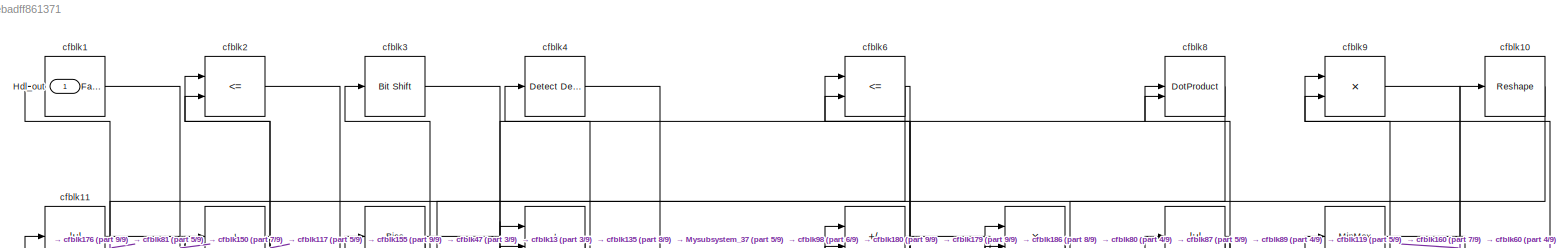
[diagram: root canvas - part 1/9, full width, top band]
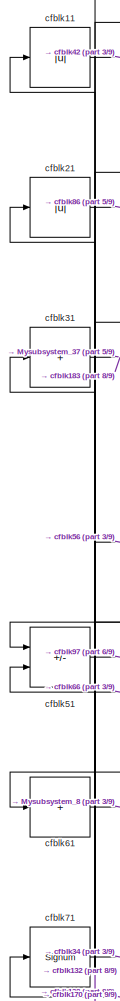
[diagram: root canvas - part 2/9, top left region]
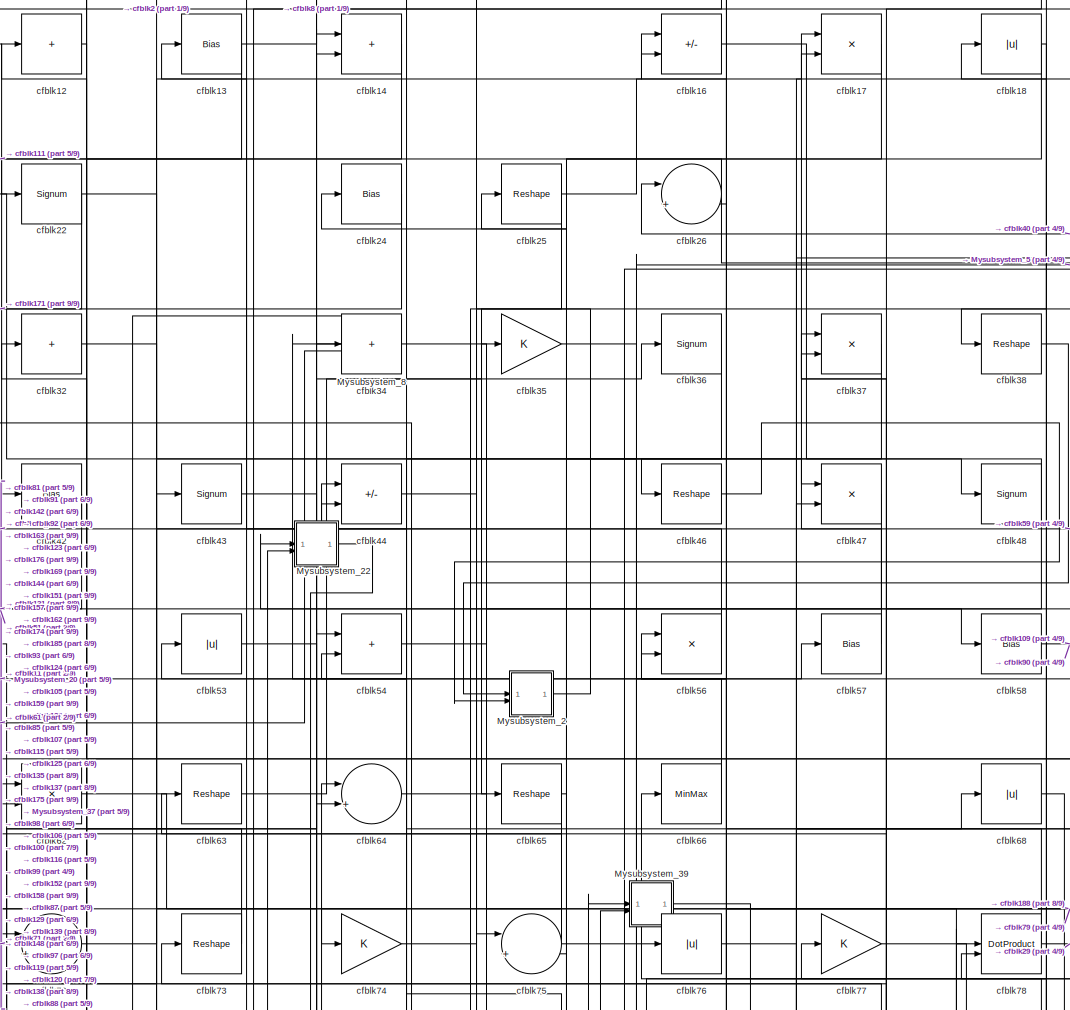
[diagram: root canvas - part 3/9, top center region]
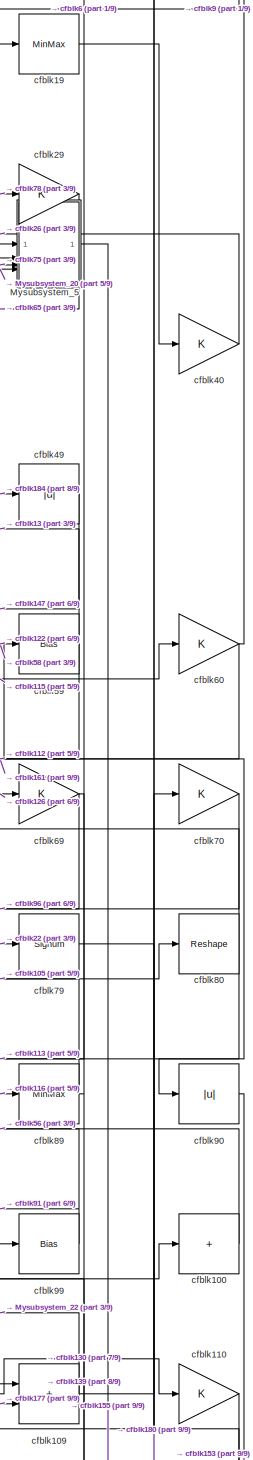
[diagram: root canvas - part 4/9, top right region]
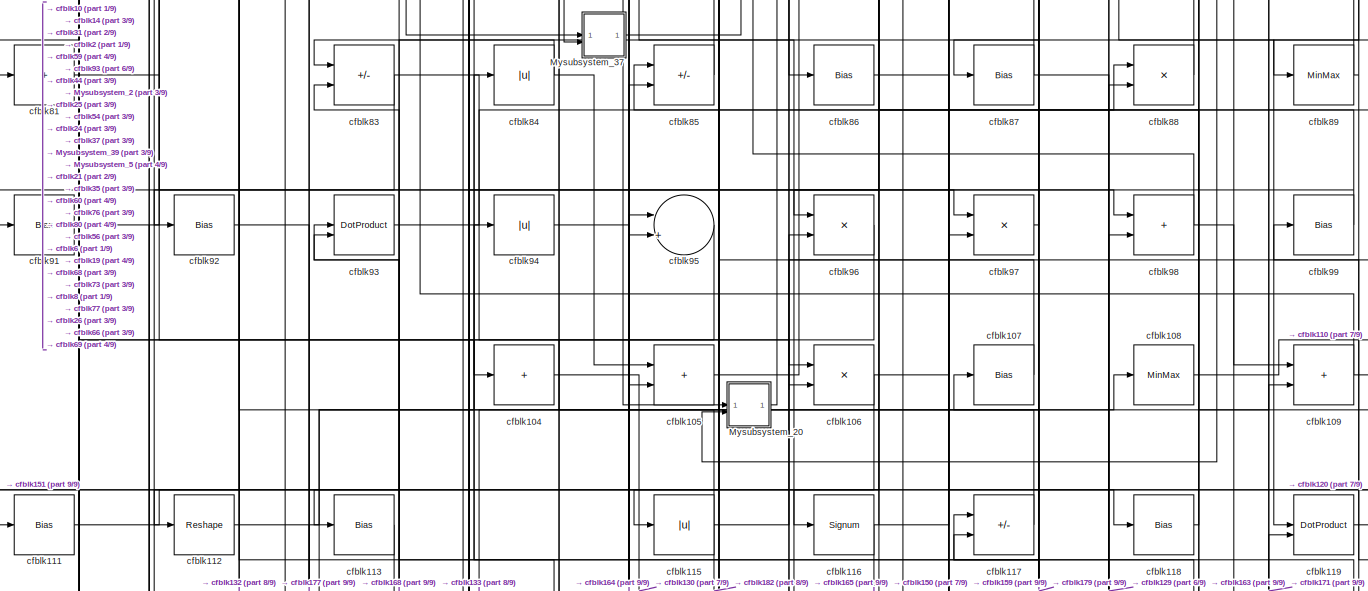
[diagram: root canvas - part 5/9, full width, middle band]
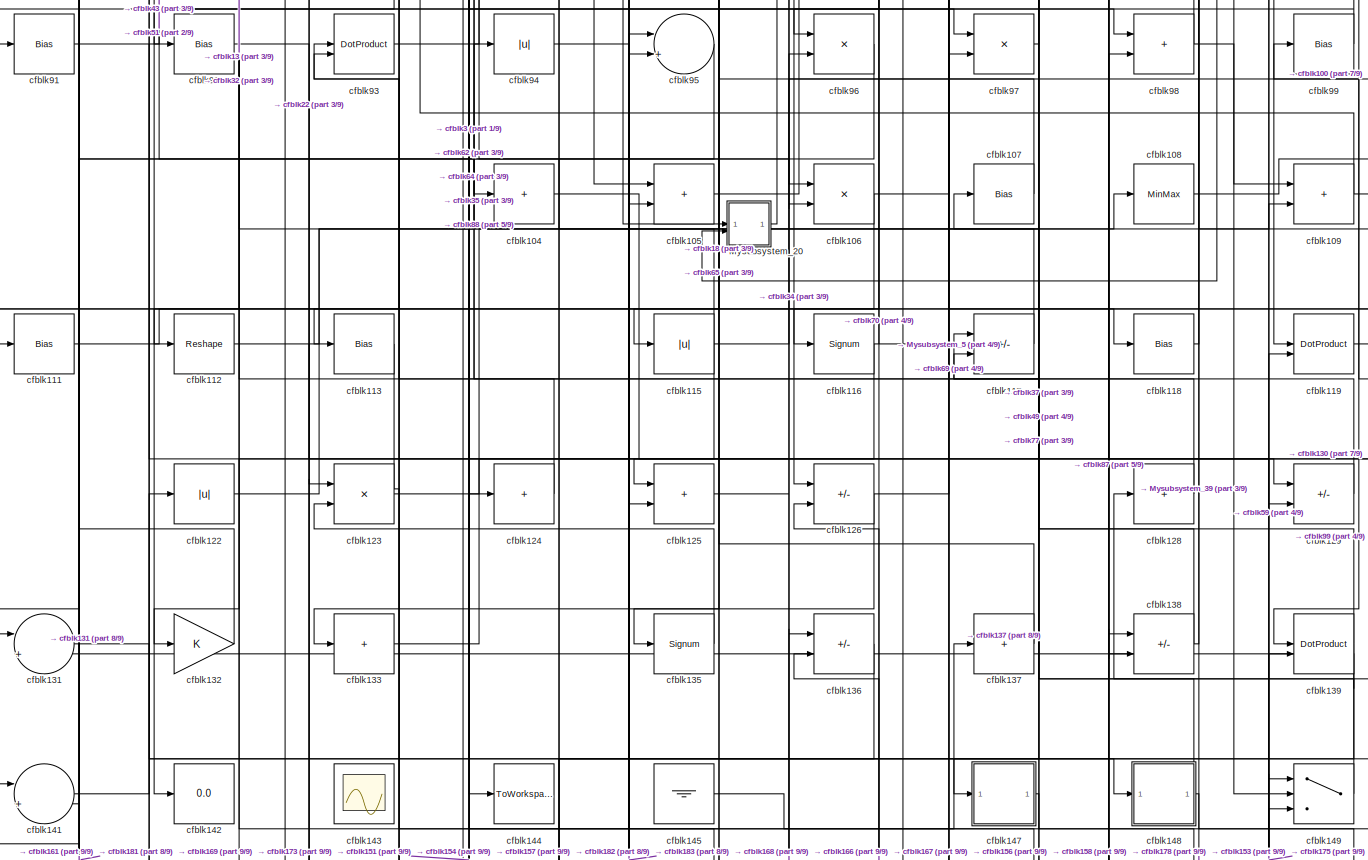
[diagram: root canvas - part 6/9, full width, middle band]
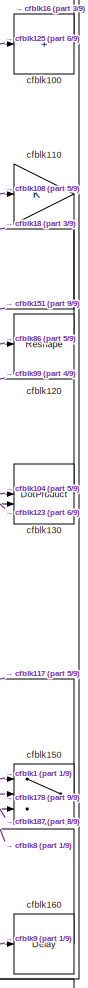
[diagram: root canvas - part 7/9, middle right region]
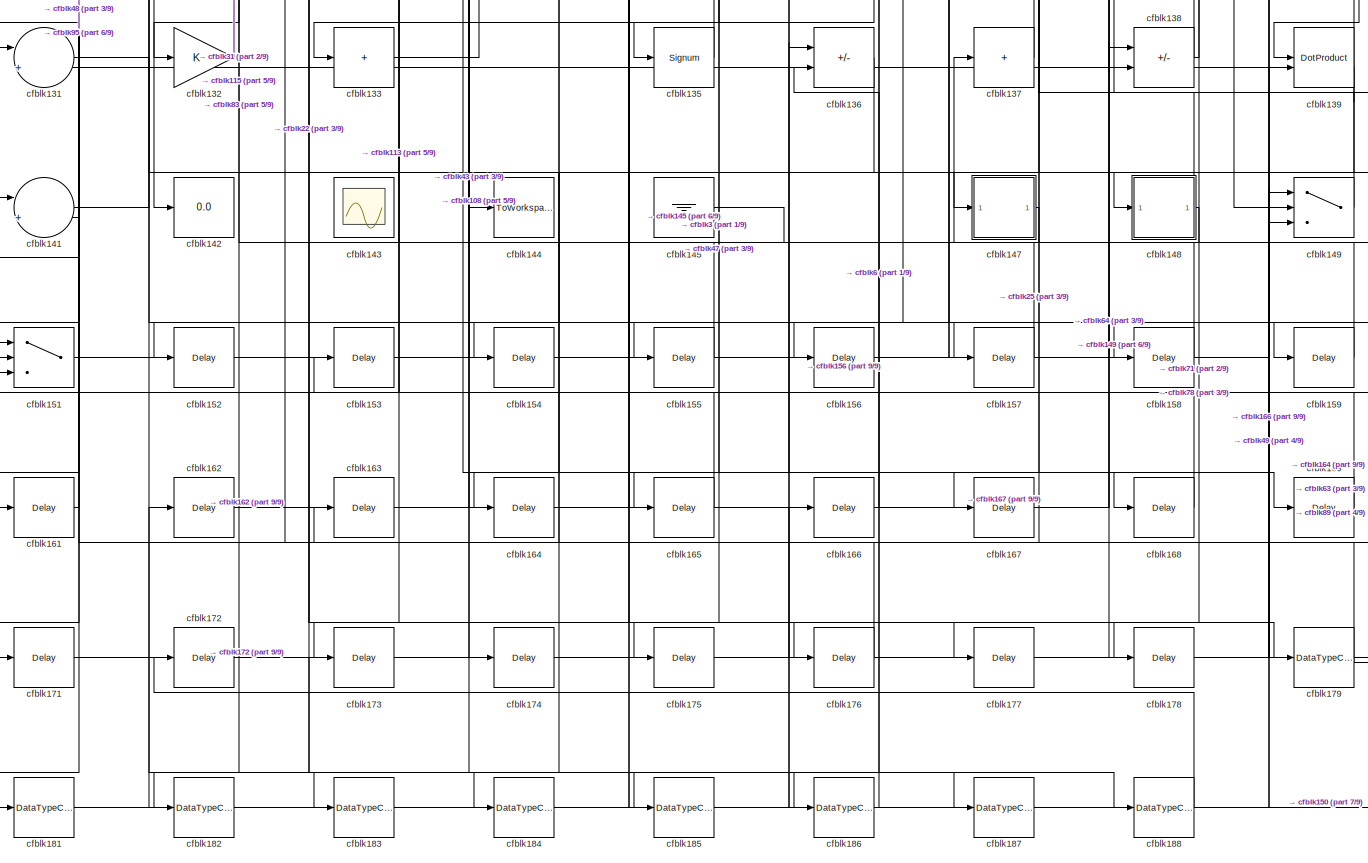
[diagram: root canvas - part 8/9, full width, bottom band]
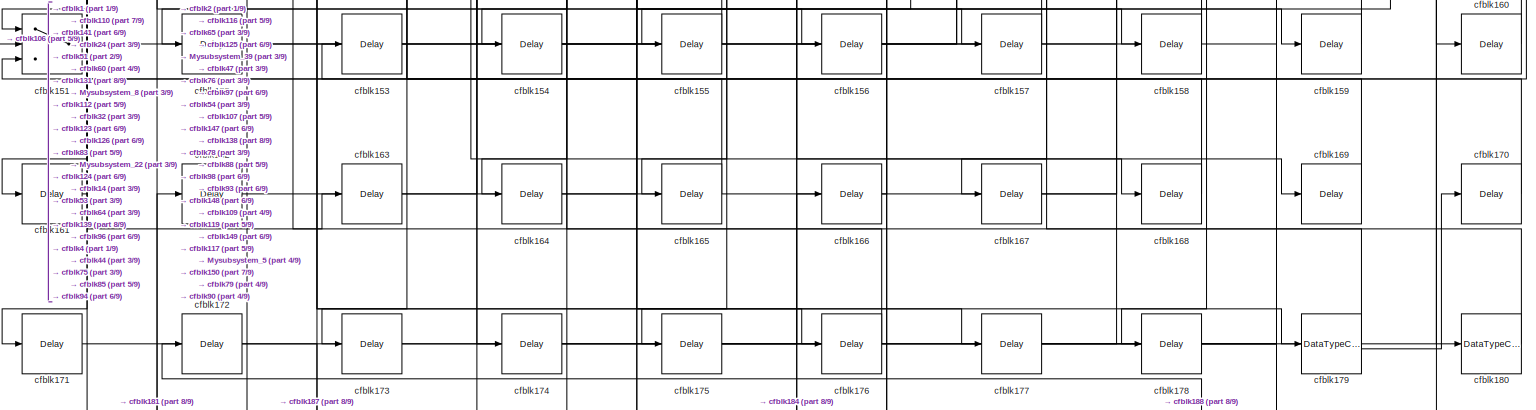
[diagram: root canvas - part 9/9, full width, bottom band]
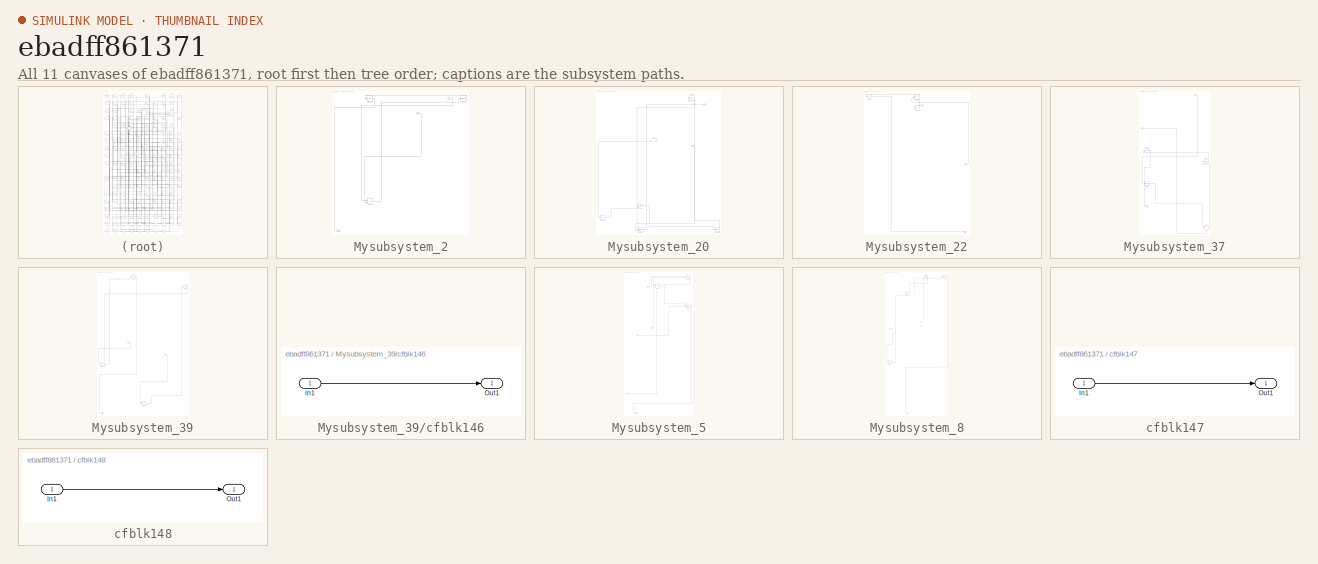
[diagram: thumbnail index - all 11 canvases of the model, root first then tree order]
MODEL slx_ebadff861371
KIND model
CONFIG AbsTol = auto
CONFIG EnableMultiTasking = off
CONFIG FixedStep = auto
CONFIG MaxStep = auto
CONFIG MinStep = auto
CONFIG RelTol = 1e-3
CONFIG SampleTimeConstraint = Unconstrained
CONFIG SolverName = VariableStepAuto
CONFIG StartTime = 0.0
CONFIG StopTime = 10.0
BLOCK [Outport] Hdl_out
  OutDataTypeStr = uint8
BLOCK [SubSystem] Mysubsystem_2
  RTWFcnName = Mysubsystem_2
  RTWFcnNameOpts = User specified
  RTWFileNameOpts = Use function name
  RTWSystemCode = Reusable function
  TreatAsAtomicUnit = on
BLOCK [Inport] Mysubsystem_2/In1
BLOCK [Inport] Mysubsystem_2/In2
  Port = 2
BLOCK [Outport] Mysubsystem_2/Out1
BLOCK [Product] Mysubsystem_2/cfblk103
  Inputs = */
  RndMeth = Zero
  SaturateOnIntegerOverflow = on
BLOCK [Abs] Mysubsystem_2/cfblk33
  SaturateOnIntegerOverflow = off
BLOCK [Signum] Mysubsystem_2/cfblk39
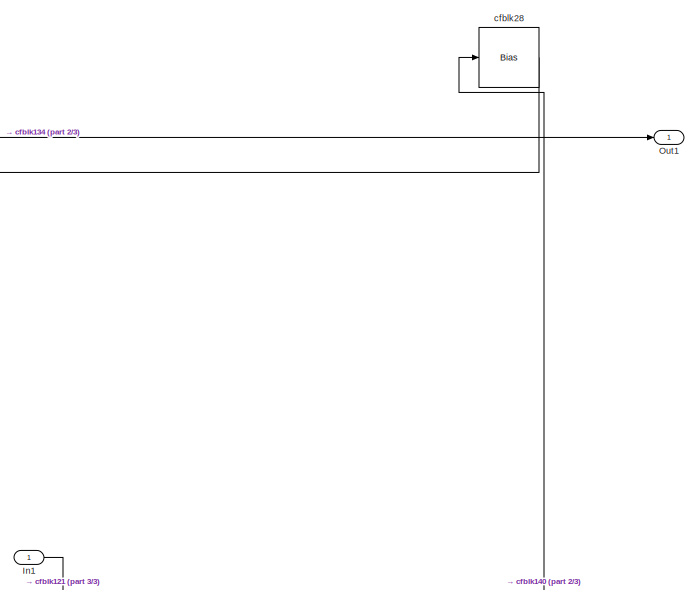
[diagram: Mysubsystem_20 - part 1/3, top center region]
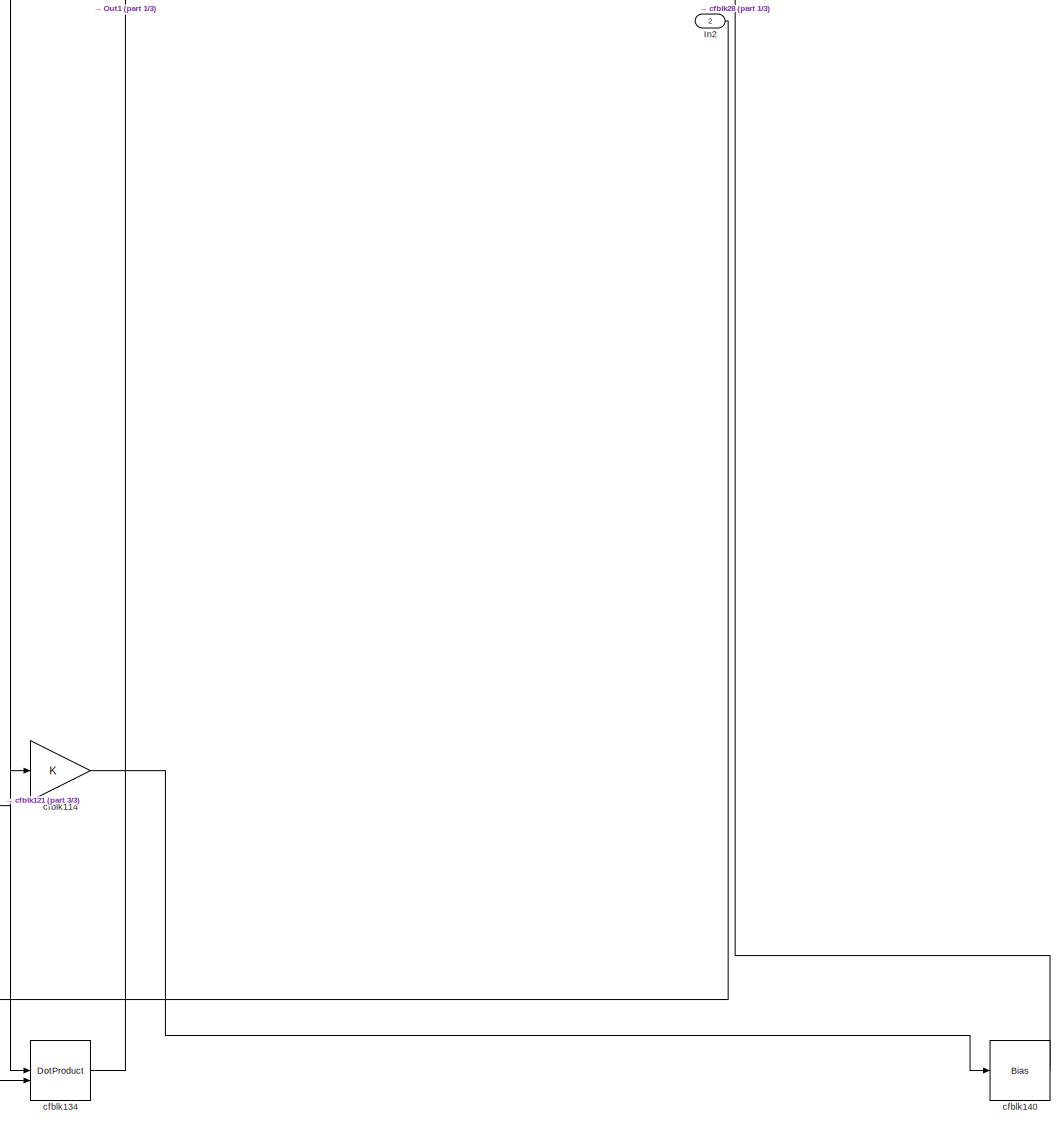
[diagram: Mysubsystem_20 - part 2/3, bottom center region]
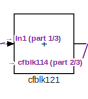
[diagram: Mysubsystem_20 - part 3/3, bottom left region]
BLOCK [SubSystem] Mysubsystem_20
  RTWFcnName = Mysubsystem_20
  RTWFcnNameOpts = User specified
  RTWFileNameOpts = Use function name
  RTWSystemCode = Reusable function
  TreatAsAtomicUnit = on
BLOCK [Inport] Mysubsystem_20/In1
BLOCK [Inport] Mysubsystem_20/In2
  Port = 2
BLOCK [Outport] Mysubsystem_20/Out1
BLOCK [Gain] Mysubsystem_20/cfblk114
BLOCK [Sum] Mysubsystem_20/cfblk121
  IconShape = rectangular
  Inputs = +
BLOCK [DotProduct] Mysubsystem_20/cfblk134
  OutDataTypeStr = Inherit: Inherit via internal rule
BLOCK [Bias] Mysubsystem_20/cfblk140
  Bias = 0.0
  SaturateOnIntegerOverflow = off
BLOCK [Bias] Mysubsystem_20/cfblk28
  Bias = 0.0
  SaturateOnIntegerOverflow = off
BLOCK [SubSystem] Mysubsystem_22
  RTWFcnName = Mysubsystem_22
  RTWFcnNameOpts = User specified
  RTWFileNameOpts = Use function name
  RTWSystemCode = Reusable function
  TreatAsAtomicUnit = on
BLOCK [Inport] Mysubsystem_22/In1
BLOCK [Inport] Mysubsystem_22/In2
  Port = 2
BLOCK [Outport] Mysubsystem_22/Out1
BLOCK [Abs] Mysubsystem_22/cfblk41
  SaturateOnIntegerOverflow = off
BLOCK [Product] Mysubsystem_22/cfblk45
  Inputs = */
  RndMeth = Zero
  SaturateOnIntegerOverflow = on
BLOCK [Bias] Mysubsystem_22/cfblk55
  Bias = 0.0
  SaturateOnIntegerOverflow = off
BLOCK [SubSystem] Mysubsystem_37
  RTWFcnName = Mysubsystem_37
  RTWFcnNameOpts = User specified
  RTWFileNameOpts = Use function name
  RTWSystemCode = Reusable function
  TreatAsAtomicUnit = on
BLOCK [Inport] Mysubsystem_37/In1
BLOCK [Inport] Mysubsystem_37/In2
  Port = 2
BLOCK [Outport] Mysubsystem_37/Out1
BLOCK [Sum] Mysubsystem_37/cfblk127
  Inputs = |++
BLOCK [Signum] Mysubsystem_37/cfblk52
BLOCK [Bias] Mysubsystem_37/cfblk67
  Bias = 0.0
  SaturateOnIntegerOverflow = off
BLOCK [Reshape] Mysubsystem_37/cfblk82
BLOCK [SubSystem] Mysubsystem_39
  RTWFcnName = Mysubsystem_39
  RTWFcnNameOpts = User specified
  RTWFileNameOpts = Use function name
  RTWSystemCode = Reusable function
  TreatAsAtomicUnit = on
BLOCK [Inport] Mysubsystem_39/In1
BLOCK [Inport] Mysubsystem_39/In2
  Port = 2
BLOCK [Outport] Mysubsystem_39/Out1
BLOCK [Sum] Mysubsystem_39/cfblk102
  Inputs = |++
BLOCK [SubSystem] Mysubsystem_39/cfblk146
  LibrarySourceBlock = hdlsllib/Ports &\nSubsystems/Subsystem
BLOCK [Inport] Mysubsystem_39/cfblk146/In1
BLOCK [Outport] Mysubsystem_39/cfblk146/Out1
BLOCK [Bias] Mysubsystem_39/cfblk15
  Bias = 0.0
  SaturateOnIntegerOverflow = off
BLOCK [Reshape] Mysubsystem_39/cfblk30
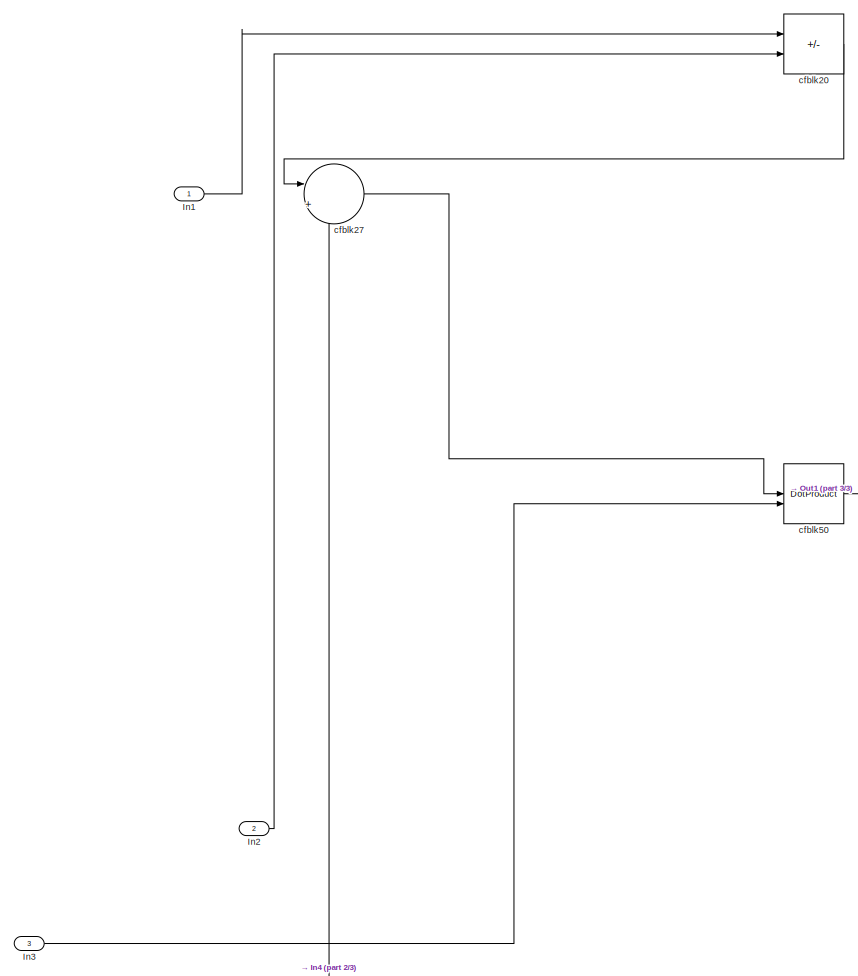
[diagram: Mysubsystem_5 - part 1/3, full width, top band]
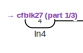
[diagram: Mysubsystem_5 - part 2/3, bottom left region]
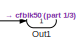
[diagram: Mysubsystem_5 - part 3/3, bottom left region]
BLOCK [SubSystem] Mysubsystem_5
  RTWFcnName = Mysubsystem_5
  RTWFcnNameOpts = User specified
  RTWFileNameOpts = Use function name
  RTWSystemCode = Reusable function
  TreatAsAtomicUnit = on
BLOCK [Inport] Mysubsystem_5/In1
BLOCK [Inport] Mysubsystem_5/In2
  Port = 2
BLOCK [Inport] Mysubsystem_5/In3
  Port = 3
BLOCK [Inport] Mysubsystem_5/In4
  Port = 4
BLOCK [Outport] Mysubsystem_5/Out1
BLOCK [Sum] Mysubsystem_5/cfblk20
  IconShape = rectangular
  Inputs = +-
BLOCK [Sum] Mysubsystem_5/cfblk27
  Inputs = |++
BLOCK [DotProduct] Mysubsystem_5/cfblk50
  OutDataTypeStr = Inherit: Inherit via internal rule
BLOCK [SubSystem] Mysubsystem_8
  RTWFcnName = Mysubsystem_8
  RTWFcnNameOpts = User specified
  RTWFileNameOpts = Use function name
  RTWSystemCode = Reusable function
  TreatAsAtomicUnit = on
BLOCK [Inport] Mysubsystem_8/In1
BLOCK [Inport] Mysubsystem_8/In2
  Port = 2
BLOCK [Sum] Mysubsystem_8/cfblk101
  IconShape = rectangular
  Inputs = +
BLOCK [Product] Mysubsystem_8/cfblk23
  Inputs = */
  RndMeth = Zero
  SaturateOnIntegerOverflow = on
BLOCK [ArithShift] Mysubsystem_8/cfblk5
  BitShiftNumber = 8
  InputPortMap = u0
BLOCK [Reference] Mysubsystem_8/cfblk7  REF=simulink/Logic and Bit
Operations/Extract Bits
  LibrarySourceBlock = hdlsllib/Logic and Bit\nOperations/Extract Bits
  SourceBlock = simulink/Logic and Bit\nOperations/Extract Bits
  SourceType = Extract Bits
BLOCK [Outport] Mysubsystem_8/y
BLOCK [Reference] cfblk1  REF=hdlsllib/Logic and Bit
Operations/Detect Fall
Nonpositive
  SourceBlock = hdlsllib/Logic and Bit\nOperations/Detect Fall\nNonpositive
  SourceType = Detect Fall Nonpositive
BLOCK [Reshape] cfblk10
BLOCK [Sum] cfblk100
  IconShape = rectangular
  Inputs = +
  OutDataTypeStr = uint8
BLOCK [Sum] cfblk104
  IconShape = rectangular
  Inputs = +
  OutDataTypeStr = uint8
BLOCK [Sum] cfblk105
  IconShape = rectangular
  OutDataTypeStr = uint8
BLOCK [Product] cfblk106
  Inputs = */
  OutDataTypeStr = uint8
  RndMeth = Zero
  SaturateOnIntegerOverflow = on
BLOCK [Bias] cfblk107
  Bias = 0.0
  SaturateOnIntegerOverflow = off
BLOCK [MinMax] cfblk108
  OutDataTypeStr = uint8
BLOCK [Sum] cfblk109
  IconShape = rectangular
  OutDataTypeStr = uint8
BLOCK [Abs] cfblk11
  OutDataTypeStr = uint8
  SaturateOnIntegerOverflow = off
BLOCK [Gain] cfblk110
  OutDataTypeStr = uint8
BLOCK [Bias] cfblk111
  Bias = 0.0
  SaturateOnIntegerOverflow = off
BLOCK [Reshape] cfblk112
BLOCK [Bias] cfblk113
  Bias = 0.0
  SaturateOnIntegerOverflow = off
BLOCK [Abs] cfblk115
  OutDataTypeStr = uint8
  SaturateOnIntegerOverflow = off
BLOCK [Signum] cfblk116
BLOCK [Sum] cfblk117
  IconShape = rectangular
  Inputs = +-
  OutDataTypeStr = uint8
BLOCK [Bias] cfblk118
  Bias = 0.0
  SaturateOnIntegerOverflow = off
BLOCK [DotProduct] cfblk119
  OutDataTypeStr = uint8
BLOCK [Sum] cfblk12
  IconShape = rectangular
  Inputs = +
  OutDataTypeStr = uint8
BLOCK [Reshape] cfblk120
BLOCK [Abs] cfblk122
  OutDataTypeStr = uint8
  SaturateOnIntegerOverflow = off
BLOCK [Product] cfblk123
  Inputs = */
  OutDataTypeStr = uint8
  RndMeth = Zero
  SaturateOnIntegerOverflow = on
BLOCK [Sum] cfblk124
  IconShape = rectangular
  Inputs = +
  OutDataTypeStr = uint8
BLOCK [Sum] cfblk125
  IconShape = rectangular
  OutDataTypeStr = uint8
BLOCK [Sum] cfblk126
  IconShape = rectangular
  Inputs = +-
  OutDataTypeStr = uint8
BLOCK [Sum] cfblk128
  IconShape = rectangular
  Inputs = +
  OutDataTypeStr = uint8
BLOCK [Sum] cfblk129
  IconShape = rectangular
  Inputs = +-
  OutDataTypeStr = uint8
BLOCK [Bias] cfblk13
  Bias = 0.0
  SaturateOnIntegerOverflow = off
BLOCK [DotProduct] cfblk130
  OutDataTypeStr = uint8
BLOCK [Sum] cfblk131
  Inputs = |++
  OutDataTypeStr = uint8
BLOCK [Gain] cfblk132
  OutDataTypeStr = uint8
BLOCK [Sum] cfblk133
  IconShape = rectangular
  Inputs = +
  OutDataTypeStr = uint8
BLOCK [Signum] cfblk135
BLOCK [Sum] cfblk136
  IconShape = rectangular
  Inputs = +-
  OutDataTypeStr = uint8
BLOCK [Sum] cfblk137
  IconShape = rectangular
  Inputs = +
  OutDataTypeStr = uint8
BLOCK [Sum] cfblk138
  IconShape = rectangular
  Inputs = +-
  OutDataTypeStr = uint8
BLOCK [DotProduct] cfblk139
  OutDataTypeStr = uint8
BLOCK [Sum] cfblk14
  IconShape = rectangular
  OutDataTypeStr = uint8
BLOCK [Sum] cfblk141
  Inputs = |++
  OutDataTypeStr = uint8
BLOCK [Display] cfblk142
  Decimation = 1
BLOCK [Scope] cfblk143
  Floating = on
  NumInputPorts = 1
  ScopeSpecificationString = Simulink.scopes.TimeScopeBlockCfg('CurrentConfiguration', extmgr.ConfigurationSet(extmgr.Configuration('Core','General UI',true,'FigureColor',[0.156862745098039 0.156862745098039 0.156862745098039]),extmgr.Configuration('Core','Source UI',true),extmgr.Configuration('Sources','WiredSimulink',true,'DataLoggingVariableName','ScopeData1','DataLoggingSaveFormat','StructureWithTime','DataLoggingLimitDat...<+2713ch>
BLOCK [ToWorkspace] cfblk144
  MaxDataPoints = inf
  SampleTime = -1
  SaveFormat = Timeseries
  VariableName = simout
BLOCK [Ground] cfblk145
BLOCK [SubSystem] cfblk147
  LibrarySourceBlock = hdlsllib/Ports &\nSubsystems/Subsystem
BLOCK [Inport] cfblk147/In1
BLOCK [Outport] cfblk147/Out1
BLOCK [SubSystem] cfblk148
  LibrarySourceBlock = hdlsllib/Ports &\nSubsystems/Subsystem
BLOCK [Inport] cfblk148/In1
BLOCK [Outport] cfblk148/Out1
BLOCK [Switch] cfblk149
  InputSameDT = off
  OutDataTypeStr = uint8
  SaturateOnIntegerOverflow = off
BLOCK [Switch] cfblk150
  InputSameDT = off
  OutDataTypeStr = uint8
  SaturateOnIntegerOverflow = off
BLOCK [Switch] cfblk151
  InputSameDT = off
  OutDataTypeStr = uint8
  SaturateOnIntegerOverflow = off
BLOCK [Delay] cfblk152
  InputPortMap = u0
  SampleTime = 1
BLOCK [Delay] cfblk153
  InputPortMap = u0
  SampleTime = 1
BLOCK [Delay] cfblk154
  InputPortMap = u0
  SampleTime = 1
BLOCK [Delay] cfblk155
  InputPortMap = u0
  SampleTime = 1
BLOCK [Delay] cfblk156
  InputPortMap = u0
  SampleTime = 1
BLOCK [Delay] cfblk157
  InputPortMap = u0
  SampleTime = 1
BLOCK [Delay] cfblk158
  InputPortMap = u0
  SampleTime = 1
BLOCK [Delay] cfblk159
  InputPortMap = u0
  SampleTime = 1
BLOCK [Sum] cfblk16
  IconShape = rectangular
  Inputs = +-
  OutDataTypeStr = uint8
BLOCK [Delay] cfblk160
  InputPortMap = u0
  SampleTime = 1
BLOCK [Delay] cfblk161
  InputPortMap = u0
  SampleTime = 1
BLOCK [Delay] cfblk162
  InputPortMap = u0
  SampleTime = 1
BLOCK [Delay] cfblk163
  InputPortMap = u0
  SampleTime = 1
BLOCK [Delay] cfblk164
  InputPortMap = u0
  SampleTime = 1
BLOCK [Delay] cfblk165
  InputPortMap = u0
  SampleTime = 1
BLOCK [Delay] cfblk166
  InputPortMap = u0
  SampleTime = 1
BLOCK [Delay] cfblk167
  InputPortMap = u0
  SampleTime = 1
BLOCK [Delay] cfblk168
  InputPortMap = u0
  SampleTime = 1
BLOCK [Delay] cfblk169
  InputPortMap = u0
  SampleTime = 1
BLOCK [Product] cfblk17
  Inputs = */
  OutDataTypeStr = uint8
  RndMeth = Zero
  SaturateOnIntegerOverflow = on
BLOCK [Delay] cfblk170
  InputPortMap = u0
  SampleTime = 1
BLOCK [Delay] cfblk171
  InputPortMap = u0
  SampleTime = 1
BLOCK [Delay] cfblk172
  InputPortMap = u0
  SampleTime = 1
BLOCK [Delay] cfblk173
  InputPortMap = u0
  SampleTime = 1
BLOCK [Delay] cfblk174
  InputPortMap = u0
  SampleTime = 1
BLOCK [Delay] cfblk175
  InputPortMap = u0
  SampleTime = 1
BLOCK [Delay] cfblk176
  InputPortMap = u0
  SampleTime = 1
BLOCK [Delay] cfblk177
  InputPortMap = u0
  SampleTime = 1
BLOCK [Delay] cfblk178
  InputPortMap = u0
  SampleTime = 1
BLOCK [DataTypeConversion] cfblk179
  OutDataTypeStr = uint8
  RndMeth = Floor
  SaturateOnIntegerOverflow = off
BLOCK [Abs] cfblk18
  OutDataTypeStr = uint8
  SaturateOnIntegerOverflow = off
BLOCK [DataTypeConversion] cfblk180
  OutDataTypeStr = uint8
  RndMeth = Floor
  SaturateOnIntegerOverflow = off
BLOCK [DataTypeConversion] cfblk181
  OutDataTypeStr = uint8
  RndMeth = Floor
  SaturateOnIntegerOverflow = off
BLOCK [DataTypeConversion] cfblk182
  OutDataTypeStr = uint8
  RndMeth = Floor
  SaturateOnIntegerOverflow = off
BLOCK [DataTypeConversion] cfblk183
  OutDataTypeStr = uint8
  RndMeth = Floor
  SaturateOnIntegerOverflow = off
BLOCK [DataTypeConversion] cfblk184
  OutDataTypeStr = uint8
  RndMeth = Floor
  SaturateOnIntegerOverflow = off
BLOCK [DataTypeConversion] cfblk185
  OutDataTypeStr = uint8
  RndMeth = Floor
  SaturateOnIntegerOverflow = off
BLOCK [DataTypeConversion] cfblk186
  OutDataTypeStr = uint8
  RndMeth = Floor
  SaturateOnIntegerOverflow = off
BLOCK [DataTypeConversion] cfblk187
  OutDataTypeStr = uint8
  RndMeth = Floor
  SaturateOnIntegerOverflow = off
BLOCK [DataTypeConversion] cfblk188
  OutDataTypeStr = uint8
  RndMeth = Floor
  SaturateOnIntegerOverflow = off
BLOCK [MinMax] cfblk19
  OutDataTypeStr = uint8
BLOCK [RelationalOperator] cfblk2
  InputSameDT = off
  Operator = <=
  OutDataTypeStr = boolean
BLOCK [Abs] cfblk21
  OutDataTypeStr = uint8
  SaturateOnIntegerOverflow = off
BLOCK [Signum] cfblk22
BLOCK [Bias] cfblk24
  Bias = 0.0
  SaturateOnIntegerOverflow = off
BLOCK [Reshape] cfblk25
BLOCK [Sum] cfblk26
  Inputs = |++
  OutDataTypeStr = uint8
BLOCK [Gain] cfblk29
  OutDataTypeStr = uint8
BLOCK [Reference] cfblk3  REF=hdlsllib/Logic and Bit
Operations/Bit Shift
  SourceBlock = hdlsllib/Logic and Bit\nOperations/Bit Shift
  SourceType = Bit Shift
BLOCK [Sum] cfblk31
  IconShape = rectangular
  Inputs = +
  OutDataTypeStr = uint8
BLOCK [Sum] cfblk32
  IconShape = rectangular
  Inputs = +
  OutDataTypeStr = uint8
BLOCK [Sum] cfblk34
  IconShape = rectangular
  Inputs = +
  OutDataTypeStr = uint8
BLOCK [Gain] cfblk35
  OutDataTypeStr = uint8
BLOCK [Signum] cfblk36
BLOCK [Product] cfblk37
  Inputs = */
  OutDataTypeStr = uint8
  RndMeth = Zero
  SaturateOnIntegerOverflow = on
BLOCK [Reshape] cfblk38
BLOCK [Reference] cfblk4  REF=simulink/Logic and Bit
Operations/Detect
Decrease
  LibrarySourceBlock = hdlsllib/Logic and Bit\nOperations/Detect\nDecrease
  SourceBlock = simulink/Logic and Bit\nOperations/Detect\nDecrease
  SourceType = Detect Decrease
BLOCK [Gain] cfblk40
  OutDataTypeStr = uint8
BLOCK [Bias] cfblk42
  Bias = 0.0
  SaturateOnIntegerOverflow = off
BLOCK [Signum] cfblk43
BLOCK [Sum] cfblk44
  IconShape = rectangular
  Inputs = +-
  OutDataTypeStr = uint8
BLOCK [Reshape] cfblk46
BLOCK [Product] cfblk47
  Inputs = */
  OutDataTypeStr = uint8
  RndMeth = Zero
  SaturateOnIntegerOverflow = on
BLOCK [Signum] cfblk48
BLOCK [Abs] cfblk49
  OutDataTypeStr = uint8
  SaturateOnIntegerOverflow = off
BLOCK [Sum] cfblk51
  IconShape = rectangular
  Inputs = +-
  OutDataTypeStr = uint8
BLOCK [Abs] cfblk53
  OutDataTypeStr = uint8
  SaturateOnIntegerOverflow = off
BLOCK [Sum] cfblk54
  IconShape = rectangular
  OutDataTypeStr = uint8
BLOCK [Product] cfblk56
  Inputs = */
  OutDataTypeStr = uint8
  RndMeth = Zero
  SaturateOnIntegerOverflow = on
BLOCK [Bias] cfblk57
  Bias = 0.0
  SaturateOnIntegerOverflow = off
BLOCK [Bias] cfblk58
  Bias = 0.0
  SaturateOnIntegerOverflow = off
BLOCK [Bias] cfblk59
  Bias = 0.0
  SaturateOnIntegerOverflow = off
BLOCK [RelationalOperator] cfblk6
  InputSameDT = off
  Operator = <=
  OutDataTypeStr = boolean
BLOCK [Gain] cfblk60
  OutDataTypeStr = uint8
BLOCK [Sum] cfblk61
  IconShape = rectangular
  Inputs = +
  OutDataTypeStr = uint8
BLOCK [Product] cfblk62
  Inputs = */
  OutDataTypeStr = uint8
  RndMeth = Zero
  SaturateOnIntegerOverflow = on
BLOCK [Reshape] cfblk63
BLOCK [Sum] cfblk64
  Inputs = |++
  OutDataTypeStr = uint8
BLOCK [Reshape] cfblk65
BLOCK [MinMax] cfblk66
  OutDataTypeStr = uint8
BLOCK [Abs] cfblk68
  OutDataTypeStr = uint8
  SaturateOnIntegerOverflow = off
BLOCK [Gain] cfblk69
  OutDataTypeStr = uint8
BLOCK [Gain] cfblk70
  OutDataTypeStr = uint8
BLOCK [Signum] cfblk71
BLOCK [Sum] cfblk72
  Inputs = |++
  OutDataTypeStr = uint8
BLOCK [Reshape] cfblk73
BLOCK [Gain] cfblk74
  OutDataTypeStr = uint8
BLOCK [Sum] cfblk75
  Inputs = |++
  OutDataTypeStr = uint8
BLOCK [Abs] cfblk76
  OutDataTypeStr = uint8
  SaturateOnIntegerOverflow = off
BLOCK [Gain] cfblk77
  OutDataTypeStr = uint8
BLOCK [DotProduct] cfblk78
  OutDataTypeStr = uint8
BLOCK [Signum] cfblk79
BLOCK [DotProduct] cfblk8
  OutDataTypeStr = uint8
BLOCK [Reshape] cfblk80
BLOCK [Sum] cfblk81
  IconShape = rectangular
  Inputs = +
  OutDataTypeStr = uint8
BLOCK [Sum] cfblk83
  IconShape = rectangular
  Inputs = +-
  OutDataTypeStr = uint8
BLOCK [Abs] cfblk84
  OutDataTypeStr = uint8
  SaturateOnIntegerOverflow = off
BLOCK [Sum] cfblk85
  IconShape = rectangular
  Inputs = +-
  OutDataTypeStr = uint8
BLOCK [Bias] cfblk86
  Bias = 0.0
  SaturateOnIntegerOverflow = off
BLOCK [Bias] cfblk87
  Bias = 0.0
  SaturateOnIntegerOverflow = off
BLOCK [Product] cfblk88
  Inputs = */
  OutDataTypeStr = uint8
  RndMeth = Zero
  SaturateOnIntegerOverflow = on
BLOCK [MinMax] cfblk89
  OutDataTypeStr = uint8
BLOCK [Product] cfblk9
  Inputs = */
  OutDataTypeStr = uint8
  RndMeth = Zero
  SaturateOnIntegerOverflow = on
BLOCK [Abs] cfblk90
  OutDataTypeStr = uint8
  SaturateOnIntegerOverflow = off
BLOCK [Bias] cfblk91
  Bias = 0.0
  SaturateOnIntegerOverflow = off
BLOCK [Bias] cfblk92
  Bias = 0.0
  SaturateOnIntegerOverflow = off
BLOCK [DotProduct] cfblk93
  OutDataTypeStr = uint8
BLOCK [Abs] cfblk94
  OutDataTypeStr = uint8
  SaturateOnIntegerOverflow = off
BLOCK [Sum] cfblk95
  Inputs = |++
  OutDataTypeStr = uint8
BLOCK [Product] cfblk96
  Inputs = */
  OutDataTypeStr = uint8
  RndMeth = Zero
  SaturateOnIntegerOverflow = on
BLOCK [Product] cfblk97
  Inputs = */
  OutDataTypeStr = uint8
  RndMeth = Zero
  SaturateOnIntegerOverflow = on
BLOCK [Sum] cfblk98
  IconShape = rectangular
  OutDataTypeStr = uint8
BLOCK [Bias] cfblk99
  Bias = 0.0
  SaturateOnIntegerOverflow = off
LINE Mysubsystem_2/In1:1 -> Mysubsystem_2/cfblk103:1
LINE Mysubsystem_2/In2:1 -> Mysubsystem_2/cfblk103:2
LINE Mysubsystem_2/cfblk103:1 -> Mysubsystem_2/cfblk39:1
LINE Mysubsystem_2/cfblk33:1 -> Mysubsystem_2/Out1:1
LINE Mysubsystem_2/cfblk39:1 -> Mysubsystem_2/cfblk33:1
LINE Mysubsystem_20/In1:1 -> Mysubsystem_20/cfblk121:1
LINE Mysubsystem_20/In2:1 -> Mysubsystem_20/cfblk134:2
LINE Mysubsystem_20/cfblk114:1 -> Mysubsystem_20/cfblk140:1
LINE Mysubsystem_20/cfblk121:1 -> Mysubsystem_20/cfblk114:1
LINE Mysubsystem_20/cfblk134:1 -> Mysubsystem_20/Out1:1
LINE Mysubsystem_20/cfblk140:1 -> Mysubsystem_20/cfblk28:1
LINE Mysubsystem_20/cfblk28:1 -> Mysubsystem_20/cfblk134:1
LINE Mysubsystem_20:1 -> Mysubsystem_5:4
LINE Mysubsystem_22/In1:1 -> Mysubsystem_22/cfblk55:1
LINE Mysubsystem_22/In2:1 -> Mysubsystem_22/cfblk45:2
LINE Mysubsystem_22/cfblk41:1 -> Mysubsystem_22/Out1:1
LINE Mysubsystem_22/cfblk45:1 -> Mysubsystem_22/cfblk41:1
LINE Mysubsystem_22/cfblk55:1 -> Mysubsystem_22/cfblk45:1
LINE Mysubsystem_22:1 -> cfblk169:1
LINE Mysubsystem_2:1 -> Mysubsystem_20:1
LINE Mysubsystem_37/In1:1 -> Mysubsystem_37/cfblk82:1
LINE Mysubsystem_37/In2:1 -> Mysubsystem_37/cfblk127:2
LINE Mysubsystem_37/cfblk127:1 -> Mysubsystem_37/cfblk67:1
LINE Mysubsystem_37/cfblk52:1 -> Mysubsystem_37/Out1:1
LINE Mysubsystem_37/cfblk67:1 -> Mysubsystem_37/cfblk52:1
LINE Mysubsystem_37/cfblk82:1 -> Mysubsystem_37/cfblk127:1
LINE Mysubsystem_37:1 -> Mysubsystem_39:1
LINE Mysubsystem_39/In1:1 -> Mysubsystem_39/cfblk102:1
LINE Mysubsystem_39/In2:1 -> Mysubsystem_39/cfblk146:1
LINE Mysubsystem_39/cfblk102:1 -> Mysubsystem_39/cfblk15:1
LINE Mysubsystem_39/cfblk146/In1:1 -> Mysubsystem_39/cfblk146/Out1:1
LINE Mysubsystem_39/cfblk146:1 -> Mysubsystem_39/cfblk30:1
LINE Mysubsystem_39/cfblk15:1 -> Mysubsystem_39/Out1:1
LINE Mysubsystem_39/cfblk30:1 -> Mysubsystem_39/cfblk102:2
LINE Mysubsystem_39:1 -> cfblk152:1
LINE Mysubsystem_5/In1:1 -> Mysubsystem_5/cfblk20:1
LINE Mysubsystem_5/In2:1 -> Mysubsystem_5/cfblk20:2
LINE Mysubsystem_5/In3:1 -> Mysubsystem_5/cfblk50:2
LINE Mysubsystem_5/In4:1 -> Mysubsystem_5/cfblk27:2
LINE Mysubsystem_5/cfblk20:1 -> Mysubsystem_5/cfblk27:1
LINE Mysubsystem_5/cfblk27:1 -> Mysubsystem_5/cfblk50:1
LINE Mysubsystem_5/cfblk50:1 -> Mysubsystem_5/Out1:1
LINE Mysubsystem_5:1 -> cfblk155:1
LINE Mysubsystem_8/In1:1 -> Mysubsystem_8/cfblk5:1
LINE Mysubsystem_8/In2:1 -> Mysubsystem_8/cfblk101:1
LINE Mysubsystem_8/cfblk101:1 -> Mysubsystem_8/cfblk23:2
LINE Mysubsystem_8/cfblk23:1 -> Mysubsystem_8/cfblk7:1
LINE Mysubsystem_8/cfblk5:1 -> Mysubsystem_8/cfblk23:1
LINE Mysubsystem_8/cfblk7:1 -> Mysubsystem_8/y:1
LINE Mysubsystem_8:1 -> cfblk163:1
LINE cfblk100:1 -> cfblk16:1
LINE cfblk104:1 -> cfblk130:1
LINE cfblk105:1 -> cfblk80:1
NET cfblk106:1 -> cfblk151:2, cfblk68:1
LINE cfblk107:1 -> cfblk24:1
LINE cfblk108:1 -> cfblk110:1
NET cfblk109:1 -> Mysubsystem_22:2, cfblk70:1
LINE cfblk10:1 -> cfblk81:1
LINE cfblk110:1 -> cfblk151:1
LINE cfblk111:1 -> cfblk118:1
NET cfblk112:1 -> cfblk177:1, cfblk84:1
LINE cfblk113:1 -> cfblk133:1
NET cfblk115:1 -> cfblk182:1, cfblk44:1, cfblk60:1, cfblk76:1
NET cfblk116:1 -> cfblk165:1, cfblk19:1, cfblk56:1
LINE cfblk117:1 -> cfblk2:1
LINE cfblk118:1 -> cfblk85:1
LINE cfblk119:1 -> cfblk10:1
NET cfblk11:1 -> cfblk42:1, cfblk61:1
LINE cfblk120:1 -> cfblk18:1
LINE cfblk122:1 -> cfblk59:1
LINE cfblk123:1 -> cfblk130:2
NET cfblk124:1 -> cfblk32:1, cfblk64:1
NET cfblk125:1 -> cfblk100:1, cfblk168:1
NET cfblk126:1 -> Mysubsystem_5:2, cfblk173:1, cfblk69:1
LINE cfblk128:1 -> cfblk93:1
NET cfblk129:1 -> cfblk37:2, cfblk94:1
LINE cfblk12:1 -> cfblk72:1
LINE cfblk130:1 -> cfblk99:1
LINE cfblk131:1 -> cfblk156:1
LINE cfblk132:1 -> cfblk31:1
LINE cfblk133:1 -> cfblk108:1
LINE cfblk135:1 -> cfblk3:1
LINE cfblk136:1 -> cfblk184:1
LINE cfblk137:1 -> cfblk25:1
NET cfblk138:1 -> cfblk71:1, cfblk78:2
NET cfblk139:1 -> cfblk164:1, cfblk63:1
NET cfblk13:1 -> cfblk8:1, cfblk92:1
NET cfblk141:1 -> cfblk122:1, cfblk148:1
LINE cfblk145:1 -> cfblk137:1
LINE cfblk147/In1:1 -> cfblk147/Out1:1
LINE cfblk147:1 -> cfblk167:1
LINE cfblk148/In1:1 -> cfblk148/Out1:1
NET cfblk148:1 -> cfblk178:1, cfblk37:1
NET cfblk149:1 -> cfblk128:1, cfblk131:2
LINE cfblk14:1 -> cfblk111:1
LINE cfblk150:1 -> cfblk117:1
NET cfblk151:1 -> cfblk124:1, cfblk64:2, cfblk75:1
LINE cfblk152:1 -> cfblk47:2
LINE cfblk153:1 -> cfblk149:1
LINE cfblk154:1 -> cfblk97:2
LINE cfblk155:1 -> cfblk2:2
LINE cfblk156:1 -> cfblk98:2
LINE cfblk157:1 -> cfblk54:1
LINE cfblk158:1 -> cfblk93:2
LINE cfblk159:1 -> cfblk117:2
LINE cfblk160:1 -> cfblk8:2
LINE cfblk161:1 -> cfblk141:1
LINE cfblk162:1 -> cfblk14:2
LINE cfblk163:1 -> cfblk88:2
LINE cfblk164:1 -> cfblk85:2
LINE cfblk165:1 -> cfblk151:3
LINE cfblk166:1 -> cfblk126:2
LINE cfblk167:1 -> cfblk138:1
LINE cfblk168:1 -> cfblk83:2
LINE cfblk169:1 -> cfblk123:2
LINE cfblk16:1 -> cfblk48:1
LINE cfblk170:1 -> cfblk51:2
LINE cfblk171:1 -> cfblk119:2
LINE cfblk172:1 -> cfblk187:1
LINE cfblk173:1 -> cfblk96:2
LINE cfblk174:1 -> cfblk78:1
LINE cfblk175:1 -> cfblk149:3
LINE cfblk176:1 -> cfblk1:1
LINE cfblk177:1 -> cfblk109:2
LINE cfblk178:1 -> cfblk150:2
NET cfblk179:1 -> cfblk107:1, cfblk170:1
LINE cfblk17:1 -> cfblk75:2
LINE cfblk180:1 -> cfblk4:1
NET cfblk181:1 -> cfblk139:2, cfblk162:1
LINE cfblk182:1 -> cfblk95:1
LINE cfblk183:1 -> cfblk95:2
NET cfblk184:1 -> cfblk166:1, cfblk49:1
LINE cfblk185:1 -> cfblk136:1
LINE cfblk186:1 -> cfblk136:2
LINE cfblk187:1 -> cfblk150:3
LINE cfblk188:1 -> cfblk172:1
NET cfblk18:1 -> Mysubsystem_22:1, cfblk125:1, cfblk38:1
LINE cfblk19:1 -> cfblk40:1
NET cfblk1:1 -> Hdl_out:1, cfblk150:1
LINE cfblk21:1 -> cfblk86:1
NET cfblk22:1 -> cfblk123:1, cfblk188:1, cfblk62:2, cfblk79:1
LINE cfblk24:1 -> cfblk171:1
NET cfblk25:1 -> cfblk105:2, cfblk17:2
NET cfblk26:1 -> Mysubsystem_5:1, cfblk22:1
LINE cfblk29:1 -> cfblk65:1
LINE cfblk2:1 -> cfblk47:1
NET cfblk31:1 -> Mysubsystem_37:2, cfblk183:1
NET cfblk32:1 -> cfblk176:1, cfblk72:2
LINE cfblk34:1 -> cfblk126:1
LINE cfblk35:1 -> cfblk106:1
LINE cfblk36:1 -> cfblk74:1
LINE cfblk37:1 -> cfblk115:1
LINE cfblk38:1 -> Mysubsystem_2:1
LINE cfblk3:1 -> cfblk98:1
LINE cfblk40:1 -> cfblk26:1
LINE cfblk42:1 -> cfblk51:1
LINE cfblk43:1 -> cfblk185:1
LINE cfblk44:1 -> cfblk159:1
LINE cfblk46:1 -> Mysubsystem_2:2
LINE cfblk47:1 -> cfblk135:1
NET cfblk48:1 -> cfblk131:1, cfblk46:1
LINE cfblk49:1 -> cfblk147:1
LINE cfblk4:1 -> cfblk179:1
LINE cfblk51:1 -> cfblk97:1
LINE cfblk53:1 -> cfblk174:1
LINE cfblk54:1 -> cfblk58:1
LINE cfblk56:1 -> cfblk21:1
LINE cfblk57:1 -> cfblk17:1
NET cfblk58:1 -> cfblk109:1, cfblk90:1
NET cfblk59:1 -> cfblk112:1, cfblk13:1
NET cfblk60:1 -> cfblk161:1, cfblk9:1
LINE cfblk61:1 -> Mysubsystem_8:2
NET cfblk62:1 -> cfblk144:1, cfblk44:2
LINE cfblk63:1 -> cfblk36:1
LINE cfblk64:1 -> cfblk138:2
NET cfblk65:1 -> cfblk142:1, cfblk175:1
LINE cfblk66:1 -> cfblk11:1
LINE cfblk68:1 -> Mysubsystem_20:2
NET cfblk69:1 -> cfblk116:1, cfblk89:1
NET cfblk6:1 -> Mysubsystem_37:1, cfblk186:1
LINE cfblk70:1 -> cfblk96:1
LINE cfblk71:1 -> cfblk34:1
LINE cfblk72:1 -> cfblk16:2
LINE cfblk73:1 -> cfblk12:1
NET cfblk74:1 -> Mysubsystem_8:1, cfblk57:1
NET cfblk75:1 -> Mysubsystem_5:3, cfblk62:1
LINE cfblk76:1 -> cfblk158:1
LINE cfblk77:1 -> cfblk119:1
NET cfblk78:1 -> cfblk29:1, cfblk53:1
LINE cfblk79:1 -> cfblk180:1
NET cfblk80:1 -> cfblk113:1, cfblk6:1
NET cfblk81:1 -> cfblk104:1, cfblk14:1
NET cfblk83:1 -> cfblk106:2, cfblk132:1
NET cfblk84:1 -> cfblk105:1, cfblk83:1
LINE cfblk85:1 -> cfblk54:2
LINE cfblk86:1 -> cfblk120:1
NET cfblk87:1 -> cfblk129:2, cfblk73:1
NET cfblk88:1 -> cfblk26:2, cfblk66:1
NET cfblk89:1 -> cfblk139:1, cfblk6:2, cfblk9:2
LINE cfblk8:1 -> cfblk87:1
LINE cfblk90:1 -> cfblk153:1
NET cfblk91:1 -> cfblk125:2, cfblk43:1
LINE cfblk92:1 -> cfblk129:1
NET cfblk93:1 -> cfblk35:1, cfblk88:1
LINE cfblk94:1 -> cfblk157:1
LINE cfblk95:1 -> cfblk181:1
NET cfblk96:1 -> cfblk141:2, cfblk154:1
LINE cfblk97:1 -> cfblk77:1
NET cfblk98:1 -> Mysubsystem_39:2, cfblk149:2
NET cfblk99:1 -> cfblk56:2, cfblk91:1
LINE cfblk9:1 -> cfblk160:1
note: NET lines group one-source signal fan-out (src -> all destinations, sorted); 1:1 wires keep LINE
